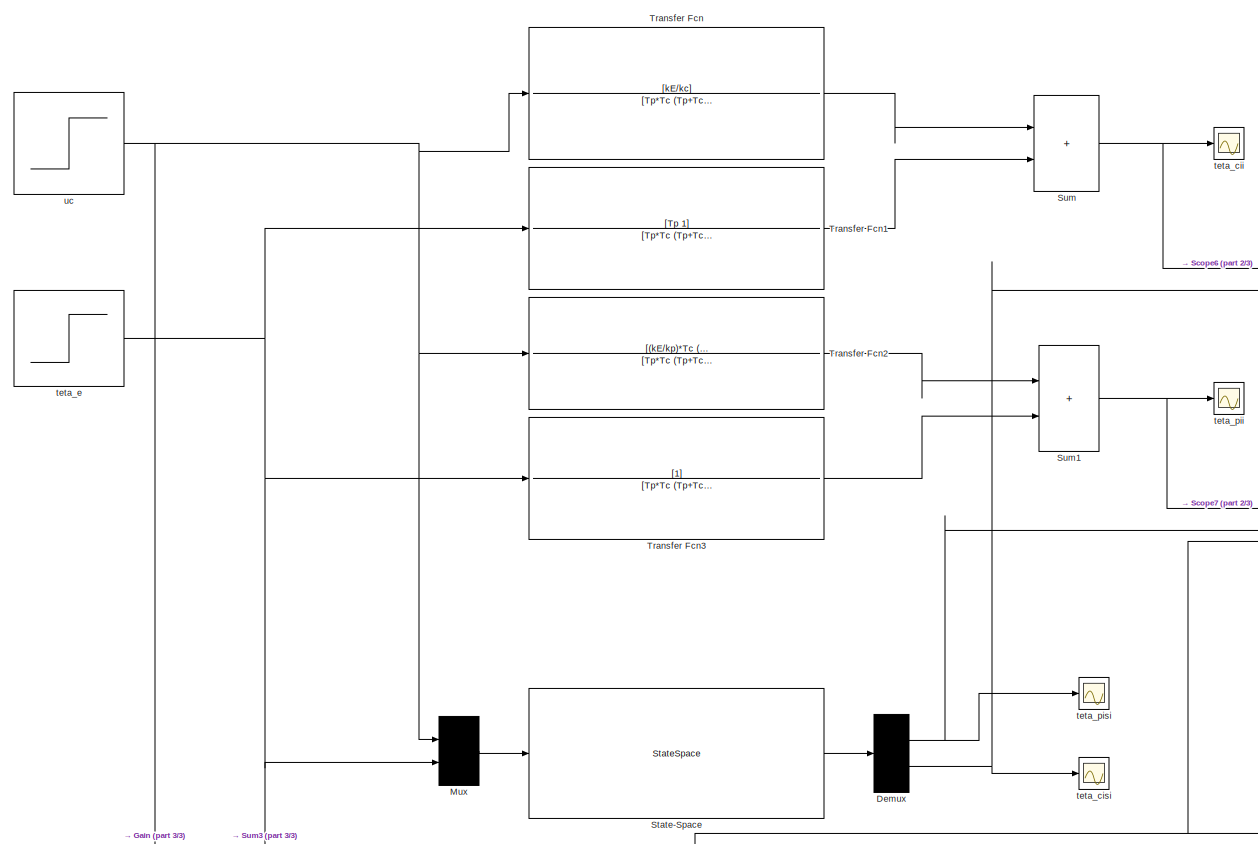
[diagram: root canvas - part 1/3, central region]
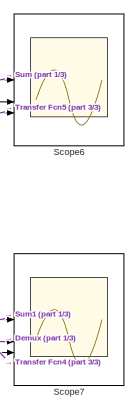
[diagram: root canvas - part 2/3, middle right region]
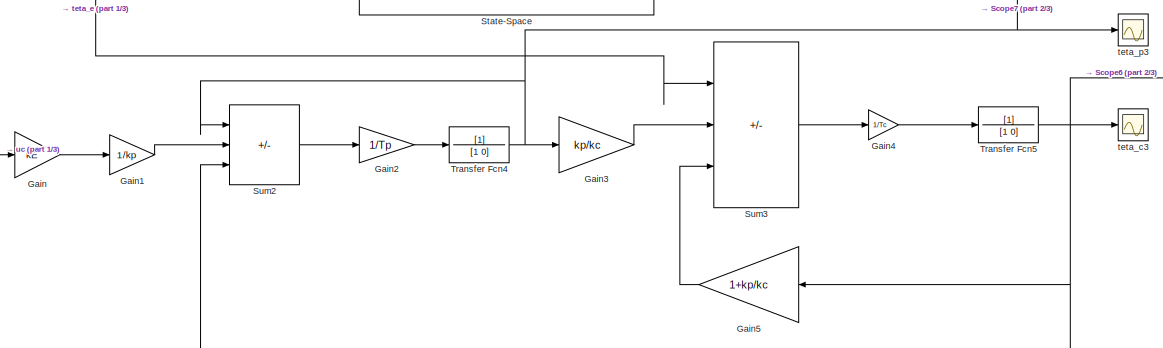
[diagram: root canvas - part 3/3, bottom center region]
MODEL slx_0a2c3a990ad7
KIND model
CONFIG AbsTol = auto
CONFIG EnableMultiTasking = off
CONFIG FixedStep = auto
CONFIG MaxStep = auto
CONFIG MinStep = auto
CONFIG RelTol = 1e-3
CONFIG SampleTimeConstraint = Unconstrained
CONFIG SolverName = VariableStepAuto
CONFIG StartTime = 0.0
CONFIG StopTime = 12000.0
BLOCK [Demux] Demux
  Outputs = 2
BLOCK [Gain] Gain
  Gain = kE
BLOCK [Gain] Gain1
  Gain = 1/kp
BLOCK [Gain] Gain2
  Gain = 1/Tp
BLOCK [Gain] Gain3
  Gain = kp/kc
BLOCK [Gain] Gain4
  Gain = 1/Tc
BLOCK [Gain] Gain5
  Gain = 1+kp/kc
  NameLocation = top
BLOCK [Mux] Mux
  DisplayOption = bar
  Inputs = 2
BLOCK [Scope] Scope6
  Floating = off
  NumInputPorts = 3
  ScopeSpecificationString = Simulink.scopes.TimeScopeBlockCfg('CurrentConfiguration', extmgr.ConfigurationSet(extmgr.Configuration('Core','General UI',true),extmgr.Configuration('Core','Source UI',true),extmgr.Configuration('Sources','WiredSimulink',true,'DataLoggingVariableName','ScopeData6'),extmgr.Configuration('Visuals','Time Domain',true,'SerializedDisplays',{struct('MinYLimReal','-2.49957','MaxYLimReal','22.49612','YLa...<+1536ch>
BLOCK [Scope] Scope7
  Floating = off
  NumInputPorts = 3
  ScopeSpecificationString = Simulink.scopes.TimeScopeBlockCfg('CurrentConfiguration', extmgr.ConfigurationSet(extmgr.Configuration('Core','General UI',true),extmgr.Configuration('Core','Source UI',true),extmgr.Configuration('Sources','WiredSimulink',true,'DataLoggingVariableName','ScopeData7'),extmgr.Configuration('Visuals','Time Domain',true,'SerializedDisplays',{struct('MinYLimReal','-3.12459','MaxYLimReal','28.12129','YLa...<+1537ch>
BLOCK [StateSpace] State-Space
  A = A
  B = B
  C = C
  D = D
  InitialCondition = 0
BLOCK [Sum] Sum
  IconShape = rectangular
  Inputs = |++
BLOCK [Sum] Sum1
  IconShape = rectangular
  Inputs = |++
BLOCK [Sum] Sum2
  IconShape = rectangular
  Inputs = |-++
BLOCK [Sum] Sum3
  IconShape = rectangular
  Inputs = |++-
BLOCK [TransferFcn] Transfer Fcn
  Denominator = [Tp*Tc (Tp+Tc+Tp*kp/kc) 1]
  Numerator = [kE/kc]
BLOCK [TransferFcn] Transfer Fcn1
  Denominator = [Tp*Tc (Tp+Tc+Tp*kp/kc) 1]
  Numerator = [Tp 1]
BLOCK [TransferFcn] Transfer Fcn2
  Denominator = [Tp*Tc (Tp+Tc+Tp*kp/kc) 1]
  Numerator = [(kE/kp)*Tc (kE/kp)*(1+kp/kc)]
BLOCK [TransferFcn] Transfer Fcn3
  Denominator = [Tp*Tc (Tp+Tc+Tp*kp/kc) 1]
BLOCK [TransferFcn] Transfer Fcn4
  Denominator = [1 0]
BLOCK [TransferFcn] Transfer Fcn5
  Denominator = [1 0]
BLOCK [Scope] teta_c3
  Floating = off
  NumInputPorts = 1
  ScopeSpecificationString = Simulink.scopes.TimeScopeBlockCfg('CurrentConfiguration', extmgr.ConfigurationSet(extmgr.Configuration('Core','General UI',true),extmgr.Configuration('Core','Source UI',true),extmgr.Configuration('Sources','WiredSimulink',true,'DataLoggingVariableName','ScopeData5'),extmgr.Configuration('Visuals','Time Domain',true,'SerializedDisplays',{struct('MinYLimReal','-2.49957','MaxYLimReal','22.49612','YLa...<+1520ch>
BLOCK [Scope] teta_cii
  Floating = off
  NumInputPorts = 1
  ScopeSpecificationString = Simulink.scopes.TimeScopeBlockCfg('CurrentConfiguration', extmgr.ConfigurationSet(extmgr.Configuration('Core','General UI',true),extmgr.Configuration('Core','Source UI',true),extmgr.Configuration('Sources','WiredSimulink',true),extmgr.Configuration('Visuals','Time Domain',true,'SerializedDisplays',{struct('MinYLimReal','-2.49957','MaxYLimReal','22.49612','YLabelReal','','MinYLimMag','0.00000','Max...<+1469ch>
BLOCK [Scope] teta_cisi
  Floating = off
  NumInputPorts = 1
  ScopeSpecificationString = Simulink.scopes.TimeScopeBlockCfg('CurrentConfiguration', extmgr.ConfigurationSet(extmgr.Configuration('Core','General UI',true),extmgr.Configuration('Core','Source UI',true),extmgr.Configuration('Sources','WiredSimulink',true,'DataLoggingVariableName','ScopeData3'),extmgr.Configuration('Visuals','Time Domain',true,'SerializedDisplays',{struct('MinYLimReal','-2.49957','MaxYLimReal','22.49612','YLa...<+1514ch>
BLOCK [Step] teta_e
  After = -10
  SampleTime = 0
  Time = 5000
BLOCK [Scope] teta_p3
  Floating = off
  NumInputPorts = 1
  ScopeSpecificationString = Simulink.scopes.TimeScopeBlockCfg('CurrentConfiguration', extmgr.ConfigurationSet(extmgr.Configuration('Core','General UI',true),extmgr.Configuration('Core','Source UI',true),extmgr.Configuration('Sources','WiredSimulink',true,'DataLoggingVariableName','ScopeData4'),extmgr.Configuration('Visuals','Time Domain',true,'SerializedDisplays',{struct('MinYLimReal','-3.12459','MaxYLimReal','28.12129','YLa...<+1519ch>
BLOCK [Scope] teta_pii
  Floating = off
  NumInputPorts = 1
  ScopeSpecificationString = Simulink.scopes.TimeScopeBlockCfg('CurrentConfiguration', extmgr.ConfigurationSet(extmgr.Configuration('Core','General UI',true),extmgr.Configuration('Core','Source UI',true),extmgr.Configuration('Sources','WiredSimulink',true,'DataLoggingVariableName','ScopeData1'),extmgr.Configuration('Visuals','Time Domain',true,'SerializedDisplays',{struct('MinYLimReal','-3.12459','MaxYLimReal','28.12129','YLa...<+1508ch>
BLOCK [Scope] teta_pisi
  Floating = off
  NumInputPorts = 1
  ScopeSpecificationString = Simulink.scopes.TimeScopeBlockCfg('CurrentConfiguration', extmgr.ConfigurationSet(extmgr.Configuration('Core','General UI',true),extmgr.Configuration('Core','Source UI',true),extmgr.Configuration('Sources','WiredSimulink',true,'DataLoggingVariableName','ScopeData2'),extmgr.Configuration('Visuals','Time Domain',true,'SerializedDisplays',{struct('MinYLimReal','-3.12459','MaxYLimReal','28.12129','YLa...<+1513ch>
BLOCK [Step] uc
  After = 2.5
  SampleTime = 0
  Time = 0
NET Demux:1 -> Scope7:2, teta_pisi:1
NET Demux:2 -> Scope6:2, teta_cisi:1
LINE Gain1:1 -> Sum2:2
LINE Gain2:1 -> Transfer Fcn4:1
LINE Gain3:1 -> Sum3:2
LINE Gain4:1 -> Transfer Fcn5:1
LINE Gain5:1 -> Sum3:3
LINE Gain:1 -> Gain1:1
LINE Mux:1 -> State-Space:1
LINE State-Space:1 -> Demux:1
NET Sum1:1 -> Scope7:1, teta_pii:1
LINE Sum2:1 -> Gain2:1
LINE Sum3:1 -> Gain4:1
NET Sum:1 -> Scope6:1, teta_cii:1
LINE Transfer Fcn1:1 -> Sum:2
LINE Transfer Fcn2:1 -> Sum1:1
LINE Transfer Fcn3:1 -> Sum1:2
NET Transfer Fcn4:1 -> Gain3:1, Scope7:3, Sum2:1, teta_p3:1
NET Transfer Fcn5:1 -> Gain5:1, Scope6:3, Sum2:3, teta_c3:1
LINE Transfer Fcn:1 -> Sum:1
NET teta_e:1 -> Mux:2, Sum3:1, Transfer Fcn1:1, Transfer Fcn3:1
NET uc:1 -> Gain:1, Mux:1, Transfer Fcn2:1, Transfer Fcn:1
note: NET lines group one-source signal fan-out (src -> all destinations, sorted); 1:1 wires keep LINE
